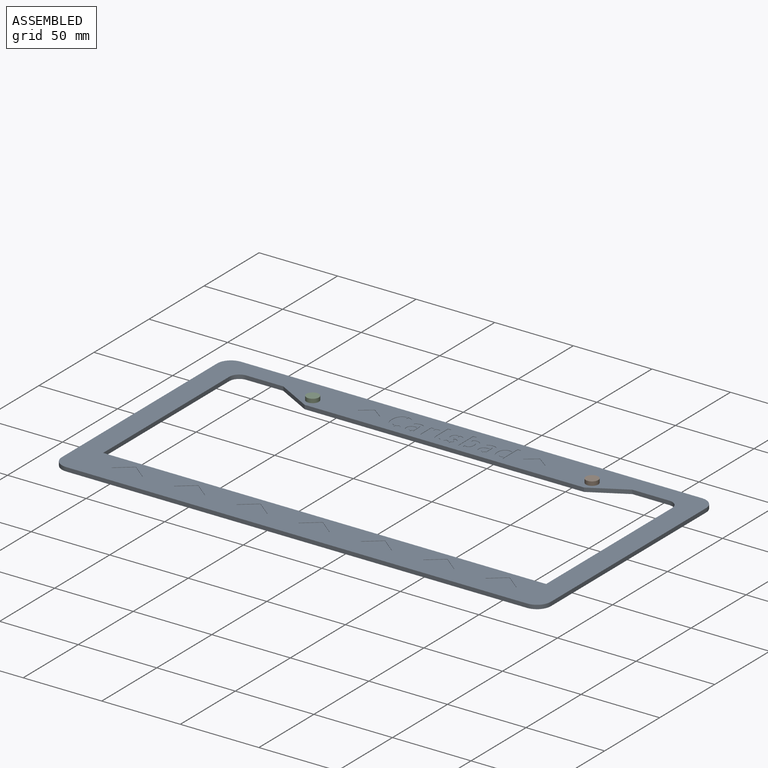
[diagram: assembled view]
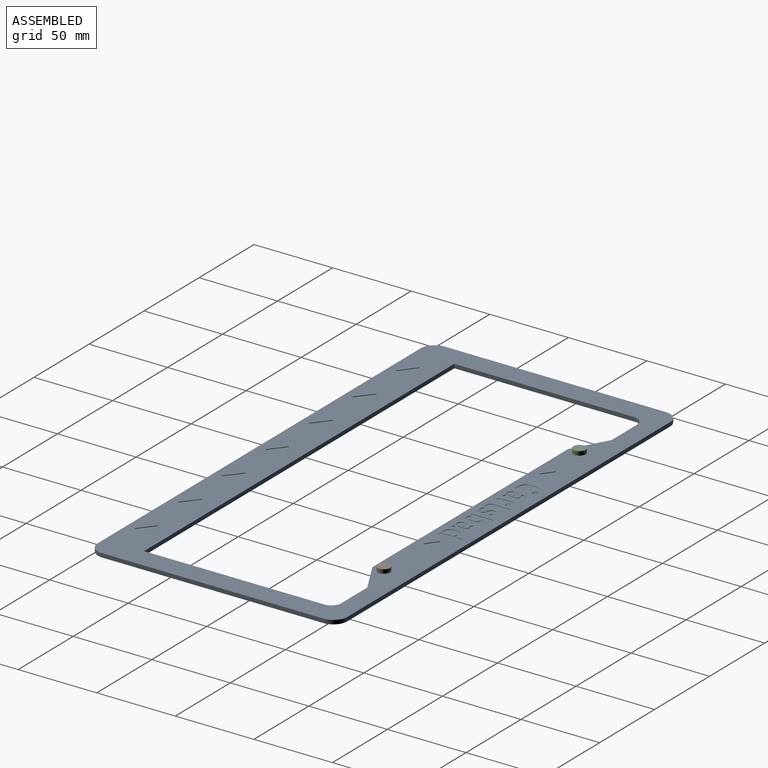
[diagram: assembled view, second angle]
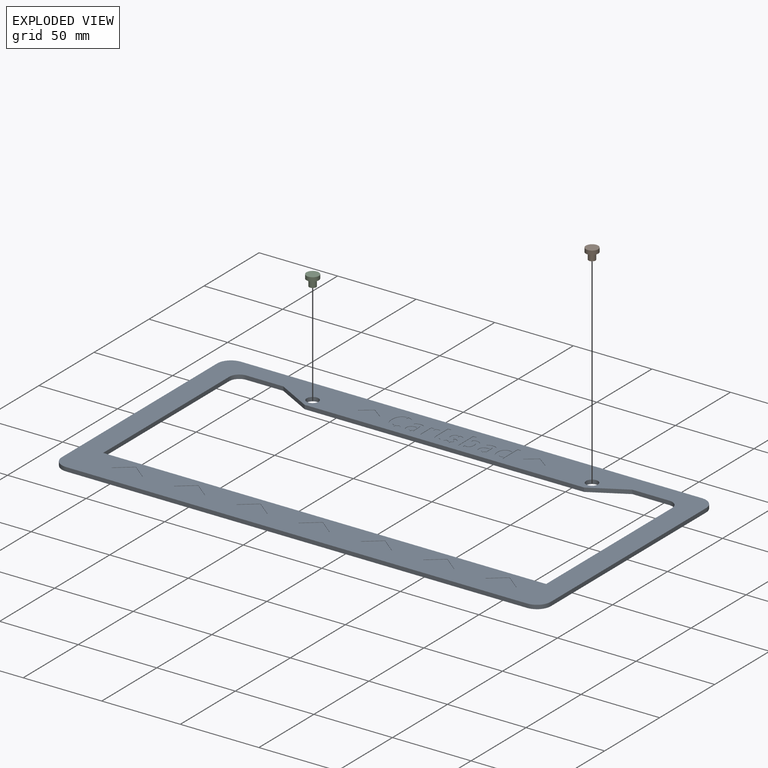
[diagram: exploded view]
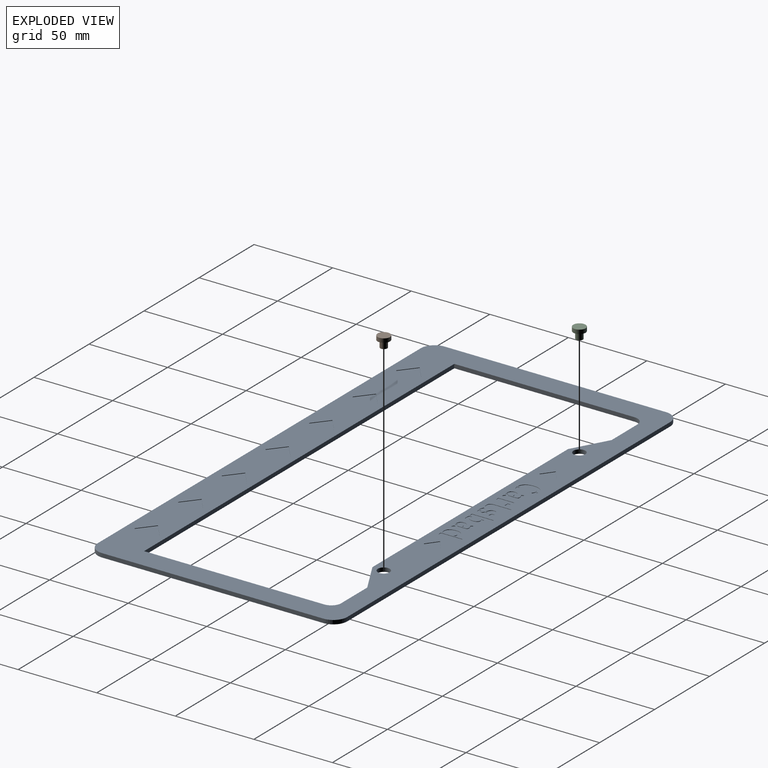
[diagram: exploded view, second angle]
ASSEMBLY  parts=3 mates=2
PART A: 357 faces, bbox 311.2x158.8x2.5 mm
  f0: plane 311.15x158.75mm, normal (0,0,1), area 15968.4mm2, adj f1,f2,f3,f4,f5,f6,f7,f8
  f1: plane 140.97x2.54mm, normal (-1,0,0), area 358.1mm2, adj f0,f2,f20,f21
  f2: cylinder r=8.89mm len=8.89mm, axis (0,0,-1), area 35.5mm2, adj f0,f1,f3,f21
  f3: plane 293.37x2.54mm, normal (0,-1,0), area 745.2mm2, adj f0,f2,f4,f21
  f4: cylinder r=8.89mm len=8.89mm, axis (0,0,-1), area 35.5mm2, adj f0,f3,f5,f21
  f5: plane 140.97x2.54mm, normal (1,0,0), area 358.1mm2, adj f0,f4,f6,f21
  f6: cylinder r=8.89mm len=8.89mm, axis (0,0,-1), area 35.5mm2, adj f0,f5,f7,f21
  f7: plane 293.37x2.54mm, normal (0,1,0), area 745.2mm2, adj f0,f6,f20,f21
  f8: cylinder r=6.35mm len=6.35mm, axis (0,0,-1), area 25.3mm2, adj f0,f9,f17,f21
  f9: plane 114.7x2.54mm, normal (-1,0,0), area 291.3mm2, adj f0,f8,f10,f21
  f10: plane 281.94x2.54mm, normal (0,1,0), area 716.1mm2, adj f0,f9,f11,f21
  f11: plane 114.7x2.54mm, normal (1,0,0), area 291.3mm2, adj f0,f10,f12,f21
  f12: cylinder r=6.35mm len=6.35mm, axis (0,0,-1), area 25.3mm2, adj f0,f11,f13,f21
  f13: plane 23.58x2.54mm, normal (0,-1,0), area 59.9mm2, adj f0,f12,f14,f21
  f14: plane 22.14x12.21mm, normal (-0.48,-0.88,0), area 64.2mm2, adj f0,f13,f15,f21
  f15: plane 177.8x2.54mm, normal (0,-1,0), area 451.6mm2, adj f0,f14,f16,f21
  f16: plane 22.14x12.21mm, normal (0.48,-0.88,0), area 64.2mm2, adj f0,f15,f17,f21
  f17: plane 23.58x2.54mm, normal (0,-1,0), area 59.9mm2, adj f0,f8,f16,f21
  f18: cylinder r=3.81mm len=7.62mm, axis (0,0,-1), area 60.8mm2, adj f0,f21
  f19: cylinder r=3.81mm len=7.62mm, axis (0,0,-1), area 60.8mm2, adj f0,f21
  f20: cylinder r=8.89mm len=8.89mm, axis (0,0,-1), area 35.5mm2, adj f0,f1,f7,f21
  f21: plane 311.15x158.75mm, normal (0,0,-1), area 17565.6mm2, adj f1,f2,f3,f4,f5,f6,f7,f8
  f22: extruded ~0.87x0.69mm, area 0.3mm2, adj f0,f23,f26,f27
  f23: plane 1.48x1.32mm, normal (-0.66,0.75,0), area 0.5mm2, adj f0,f22,f24,f27
  f24: extruded ~3.35x1.41mm, area 0.9mm2, adj f0,f23,f25,f27
  f25: plane 1.77x0.25mm, normal (1,0,0), area 0.4mm2, adj f0,f24,f26,f27
  f26: extruded ~1x0.27mm, area 0.3mm2, adj f0,f22,f25,f27
  f27: plane 3.35x2.73mm, normal (0,0,1), area 5.4mm2, adj f22,f23,f24,f25,f26
  f28: extruded ~2.33x0.38mm, area 0.6mm2, adj f0,f29,f52,f53
  f29: extruded ~2.26x0.32mm, area 0.6mm2, adj f0,f28,f30,f53
  f30: extruded ~1.9x1mm, area 0.5mm2, adj f0,f29,f31,f53
  f31: extruded ~1.22x0.85mm, area 0.4mm2, adj f0,f30,f32,f53
  f32: extruded ~1.4x0.26mm, area 0.4mm2, adj f0,f31,f33,f53
  f33: extruded ~1.19x0.25mm, area 0.3mm2, adj f0,f32,f34,f53
  f34: extruded ~0.99x0.38mm, area 0.3mm2, adj f0,f33,f35,f53
  f35: plane 1.85x0.25mm, normal (-1,0,0), area 0.5mm2, adj f0,f34,f36,f53
  f36: extruded ~1.48x0.69mm, area 0.4mm2, adj f0,f35,f37,f53
  f37: extruded ~0.96x0.27mm, area 0.3mm2, adj f0,f36,f38,f53
  f38: extruded ~0.74x0.73mm, area 0.3mm2, adj f0,f37,f39,f53
  f39: extruded ~1.08x0.48mm, area 0.3mm2, adj f0,f38,f40,f53
  f40: extruded ~1.33x0.25mm, area 0.3mm2, adj f0,f39,f41,f53
  f41: extruded ~1.34x0.25mm, area 0.3mm2, adj f0,f40,f42,f53
  f42: extruded ~1.11x0.45mm, area 0.3mm2, adj f0,f41,f43,f53
  f43: extruded ~0.76x0.72mm, area 0.3mm2, adj f0,f42,f44,f53
  f44: extruded ~0.98x0.28mm, area 0.3mm2, adj f0,f43,f45,f53
  f45: extruded ~0.84x0.25mm, area 0.2mm2, adj f0,f44,f46,f53
  f46: extruded ~0.68x0.52mm, area 0.2mm2, adj f0,f45,f47,f53
  f47: plane 1.89x0.25mm, normal (-1,0,0), area 0.5mm2, adj f0,f46,f48,f53
  f48: extruded ~0.89x0.36mm, area 0.2mm2, adj f0,f47,f49,f53
  f49: extruded ~1.05x0.25mm, area 0.3mm2, adj f0,f48,f50,f53
  f50: extruded ~1.45x0.26mm, area 0.4mm2, adj f0,f49,f51,f53
  f51: extruded ~1.35x0.85mm, area 0.4mm2, adj f0,f50,f52,f53
  f52: extruded ~1.53x0.99mm, area 0.5mm2, adj f0,f28,f51,f53
  f53: plane 10.23x6.11mm, normal (0,0,1), area 31.5mm2, adj f28,f29,f30,f31,f32,f33,f34,f35
  f54: extruded ~1.01x0.28mm, area 0.3mm2, adj f0,f55,f59,f60
  f55: plane 1.77x0.25mm, normal (1,0,0), area 0.4mm2, adj f0,f54,f56,f60
  f56: extruded ~1.84x0.41mm, area 0.5mm2, adj f0,f55,f57,f60
  f57: extruded ~1.52x1.02mm, area 0.5mm2, adj f0,f56,f58,f60
  f58: plane 1.48x1.3mm, normal (-0.66,-0.75,0), area 0.5mm2, adj f0,f57,f59,f60
  f59: extruded ~0.86x0.68mm, area 0.3mm2, adj f0,f54,f58,f60
  f60: plane 3.35x2.73mm, normal (0,0,1), area 5.4mm2, adj f54,f55,f56,f57,f58,f59
  f61: extruded ~2.8x0.38mm, area 0.7mm2, adj f0,f62,f78,f79
  f62: extruded ~2.81x0.38mm, area 0.7mm2, adj f0,f61,f63,f79
  f63: extruded ~2.06x1.06mm, area 0.6mm2, adj f0,f62,f64,f79
  f64: extruded ~1.59x1.3mm, area 0.5mm2, adj f0,f63,f65,f79
  f65: extruded ~2.01x0.53mm, area 0.5mm2, adj f0,f64,f66,f79
  f66: plane 1.75x0.25mm, normal (-1,0,0), area 0.4mm2, adj f0,f65,f67,f79
  f67: extruded ~1.1x0.39mm, area 0.3mm2, adj f0,f66,f68,f79
  f68: extruded ~0.93x0.92mm, area 0.3mm2, adj f0,f67,f69,f79
  f69: extruded ~1.5x0.61mm, area 0.4mm2, adj f0,f68,f70,f79
  f70: extruded ~2.14x0.25mm, area 0.5mm2, adj f0,f69,f71,f79
  f71: extruded ~2.13x0.25mm, area 0.5mm2, adj f0,f70,f72,f79
  f72: extruded ~1.49x0.61mm, area 0.4mm2, adj f0,f71,f73,f79
  f73: extruded ~0.91x0.9mm, area 0.3mm2, adj f0,f72,f74,f79
  f74: extruded ~1.11x0.4mm, area 0.3mm2, adj f0,f73,f75,f79
  f75: plane 1.78x0.25mm, normal (-1,0,0), area 0.5mm2, adj f0,f74,f76,f79
  f76: extruded ~2.01x0.55mm, area 0.5mm2, adj f0,f75,f77,f79
  f77: extruded ~1.59x1.3mm, area 0.5mm2, adj f0,f76,f78,f79
  f78: extruded ~2.05x1.06mm, area 0.6mm2, adj f0,f61,f77,f79
  f79: plane 13.41x5.05mm, normal (0,0,1), area 31.4mm2, adj f61,f62,f63,f64,f65,f66,f67,f68
  f80: extruded ~0.42x0.25mm, area 0.1mm2, adj f0,f81,f114,f115
  f81: plane 2.46x0.25mm, normal (-1,0,0), area 0.6mm2, adj f0,f80,f82,f115
  f82: extruded ~1.26x0.25mm, area 0.3mm2, adj f0,f81,f83,f115
  f83: extruded ~1.26x0.25mm, area 0.3mm2, adj f0,f82,f84,f115
  f84: extruded ~1.04x0.44mm, area 0.3mm2, adj f0,f83,f85,f115
  f85: extruded ~0.73x0.67mm, area 0.3mm2, adj f0,f84,f86,f115
  f86: extruded ~0.93x0.36mm, area 0.3mm2, adj f0,f85,f87,f115
  f87: extruded ~1.04x0.25mm, area 0.3mm2, adj f0,f86,f88,f115
  f88: extruded ~1.13x0.25mm, area 0.3mm2, adj f0,f87,f89,f115
  f89: extruded ~1.01x0.26mm, area 0.3mm2, adj f0,f88,f90,f115
  f90: extruded ~0.82x0.37mm, area 0.2mm2, adj f0,f89,f91,f115
  f91: extruded ~0.53x0.4mm, area 0.2mm2, adj f0,f90,f92,f115
  f92: plane 1.23x0.8mm, normal (0.84,0.55,0), area 0.4mm2, adj f0,f91,f93,f115
  f93: extruded ~0.33x0.25mm, area 0.1mm2, adj f0,f92,f94,f115
  f94: extruded ~0.52x0.3mm, area 0.2mm2, adj f0,f93,f95,f115
  f95: extruded ~0.64x0.25mm, area 0.2mm2, adj f0,f94,f96,f115
  f96: extruded ~0.74x0.25mm, area 0.2mm2, adj f0,f95,f97,f115
  f97: extruded ~0.74x0.25mm, area 0.2mm2, adj f0,f96,f98,f115
  f98: extruded ~0.53x0.3mm, area 0.2mm2, adj f0,f97,f99,f115
  f99: extruded ~0.76x0.3mm, area 0.2mm2, adj f0,f98,f100,f115
  f100: extruded ~1.39x0.25mm, area 0.4mm2, adj f0,f99,f101,f115
  f101: plane 3.76x0.25mm, normal (1,0,0), area 1mm2, adj f0,f100,f102,f115
  f102: extruded ~0.61x0.6mm, area 0.2mm2, adj f0,f101,f103,f115
  f103: extruded ~0.78x0.35mm, area 0.2mm2, adj f0,f102,f104,f115
  f104: plane 1.36x0.25mm, normal (1,0,0), area 0.3mm2, adj f0,f103,f105,f115
  f105: extruded ~1.17x0.51mm, area 0.3mm2, adj f0,f104,f106,f115
  f106: extruded ~0.79x0.71mm, area 0.3mm2, adj f0,f105,f107,f115
  f107: extruded ~0.53x0.26mm, area 0.1mm2, adj f0,f106,f108,f115
  f108: extruded ~0.44x0.41mm, area 0.2mm2, adj f0,f107,f109,f115
  f109: extruded ~0.5x0.3mm, area 0.1mm2, adj f0,f108,f110,f115
  f110: extruded ~0.49x0.25mm, area 0.1mm2, adj f0,f109,f111,f115
  f111: plane 1.2x0.57mm, normal (-0.9,0.43,0), area 0.3mm2, adj f0,f110,f112,f115
  f112: extruded ~0.31x0.3mm, area 0.1mm2, adj f0,f111,f113,f115
  f113: extruded ~0.52x0.25mm, area 0.1mm2, adj f0,f112,f114,f115
  f114: extruded ~0.56x0.25mm, area 0.1mm2, adj f0,f80,f113,f115
  f115: plane 10.14x7.42mm, normal (0,0,1), area 28.2mm2, adj f80,f81,f82,f83,f84,f85,f86,f87
  f116: extruded ~1.2x0.33mm, area 0.3mm2, adj f0,f117,f134,f135
  f117: extruded ~0.94x0.25mm, area 0.2mm2, adj f0,f116,f118,f135
  f118: extruded ~0.56x0.56mm, area 0.2mm2, adj f0,f117,f119,f135
  f119: extruded ~0.73x0.27mm, area 0.2mm2, adj f0,f118,f120,f135
  f120: extruded ~0.75x0.25mm, area 0.2mm2, adj f0,f119,f121,f135
  f121: plane 0.39x0.25mm, normal (0,1,0), area 0.1mm2, adj f0,f120,f122,f135
  f122: plane 1.27x0.25mm, normal (-1,0,0), area 0.3mm2, adj f0,f121,f123,f135
  f123: plane 0.78x0.25mm, normal (0,-1,0), area 0.2mm2, adj f0,f122,f124,f135
  f124: extruded ~1.41x0.25mm, area 0.4mm2, adj f0,f123,f125,f135
  f125: extruded ~1.24x0.57mm, area 0.3mm2, adj f0,f124,f126,f135
  f126: extruded ~0.98x0.89mm, area 0.3mm2, adj f0,f125,f127,f135
  f127: extruded ~1.42x0.35mm, area 0.4mm2, adj f0,f126,f128,f135
  f128: extruded ~1.44x0.25mm, area 0.4mm2, adj f0,f127,f129,f135
  f129: extruded ~0.95x0.67mm, area 0.3mm2, adj f0,f128,f130,f135
  f130: extruded ~0.99x0.52mm, area 0.3mm2, adj f0,f129,f131,f135
  f131: extruded ~1.17x0.25mm, area 0.3mm2, adj f0,f130,f132,f135
  f132: extruded ~0.25x0.23mm, area 0.1mm2, adj f0,f131,f133,f135
  f133: plane 1.44x0.25mm, normal (-1,0,0), area 0.4mm2, adj f0,f132,f134,f135
  f134: extruded ~0.95x0.46mm, area 0.3mm2, adj f0,f116,f133,f135
  f135: plane 6.22x4.67mm, normal (0,0,1), area 14.8mm2, adj f116,f117,f118,f119,f120,f121,f122,f123
  f136: plane 1.03x0.25mm, normal (-0.98,-0.22,0), area 0.3mm2, adj f0,f137,f140,f141
  f137: plane 1.93x0.25mm, normal (0,-1,0), area 0.5mm2, adj f0,f136,f138,f141
  f138: plane 10.05x0.25mm, normal (1,0,0), area 2.6mm2, adj f0,f137,f139,f141
  f139: plane 2.16x0.25mm, normal (0,1,0), area 0.5mm2, adj f0,f138,f140,f141
  f140: plane 9.02x0.25mm, normal (-1,0,0), area 2.3mm2, adj f0,f136,f139,f141
  f141: plane 10.05x2.16mm, normal (0,0,1), area 21.6mm2, adj f136,f137,f138,f139,f140
  f142: extruded ~1.07x0.38mm, area 0.3mm2, adj f0,f143,f148,f149
  f143: plane 1.82x0.25mm, normal (1,0,0), area 0.5mm2, adj f0,f142,f144,f149
  f144: extruded ~0.76x0.25mm, area 0.2mm2, adj f0,f143,f145,f149
  f145: extruded ~0.79x0.25mm, area 0.2mm2, adj f0,f144,f146,f149
  f146: extruded ~1.21x0.25mm, area 0.3mm2, adj f0,f145,f147,f149
  f147: plane 2.24x0.25mm, normal (-1,0,0), area 0.6mm2, adj f0,f146,f148,f149
  f148: extruded ~1.69x0.25mm, area 0.4mm2, adj f0,f142,f147,f149
  f149: plane 2.76x2.34mm, normal (0,0,1), area 5.6mm2, adj f142,f143,f144,f145,f146,f147,f148
  f150: extruded ~0.95x0.25mm, area 0.2mm2, adj f0,f151,f166,f167
  f151: plane 10.78x0.25mm, normal (-1,0,0), area 2.7mm2, adj f0,f150,f152,f167
  f152: plane 2.18x0.25mm, normal (0,-1,0), area 0.6mm2, adj f0,f151,f153,f167
  f153: plane 10.68x0.25mm, normal (1,0,0), area 2.7mm2, adj f0,f152,f154,f167
  f154: extruded ~0.75x0.25mm, area 0.2mm2, adj f0,f153,f155,f167
  f155: extruded ~0.99x0.25mm, area 0.3mm2, adj f0,f154,f156,f167
  f156: extruded ~0.92x0.52mm, area 0.3mm2, adj f0,f155,f157,f167
  f157: extruded ~0.94x0.53mm, area 0.3mm2, adj f0,f156,f158,f167
  f158: extruded ~0.48x0.25mm, area 0.1mm2, adj f0,f157,f159,f167
  f159: extruded ~0.54x0.25mm, area 0.1mm2, adj f0,f158,f160,f167
  f160: extruded ~0.53x0.25mm, area 0.1mm2, adj f0,f159,f161,f167
  f161: extruded ~0.47x0.25mm, area 0.1mm2, adj f0,f160,f162,f167
  f162: extruded ~0.48x0.25mm, area 0.1mm2, adj f0,f161,f163,f167
  f163: plane 1.32x0.25mm, normal (-1,0,0), area 0.3mm2, adj f0,f162,f164,f167
  f164: extruded ~0.79x0.25mm, area 0.2mm2, adj f0,f163,f165,f167
  f165: extruded ~0.65x0.25mm, area 0.2mm2, adj f0,f164,f166,f167
  f166: extruded ~0.52x0.45mm, area 0.2mm2, adj f0,f150,f165,f167
  f167: plane 13.94x4.22mm, normal (0,0,1), area 32.3mm2, adj f150,f151,f152,f153,f154,f155,f156,f157
  f168: extruded ~1.22x0.25mm, area 0.3mm2, adj f0,f169,f181,f182
  f169: extruded ~1.46x0.47mm, area 0.4mm2, adj f0,f168,f170,f182
  f170: extruded ~1.42x1.05mm, area 0.5mm2, adj f0,f169,f171,f182
  f171: extruded ~0.61x0.26mm, area 0.2mm2, adj f0,f170,f172,f182
  f172: extruded ~0.61x0.25mm, area 0.2mm2, adj f0,f171,f173,f182
  f173: plane 1.91x0.25mm, normal (-1,0,0), area 0.5mm2, adj f0,f172,f174,f182
  f174: extruded ~0.7x0.46mm, area 0.2mm2, adj f0,f173,f175,f182
  f175: extruded ~0.69x0.28mm, area 0.2mm2, adj f0,f174,f176,f182
  f176: extruded ~0.8x0.26mm, area 0.2mm2, adj f0,f175,f177,f182
  f177: extruded ~0.72x0.37mm, area 0.2mm2, adj f0,f176,f178,f182
  f178: plane 1.78x0.25mm, normal (-1,0,0), area 0.5mm2, adj f0,f177,f179,f182
  f179: extruded ~1.17x0.28mm, area 0.3mm2, adj f0,f178,f180,f182
  f180: extruded ~1.01x0.61mm, area 0.3mm2, adj f0,f179,f181,f182
  f181: extruded ~0.93x0.7mm, area 0.3mm2, adj f0,f168,f180,f182
  f182: plane 6.01x3.12mm, normal (0,0,1), area 12.5mm2, adj f168,f169,f170,f171,f172,f173,f174,f175
  f183: plane 2.16x0.25mm, normal (0,-1,0), area 0.5mm2, adj f0,f184,f188,f189
  f184: plane 13.85x0.25mm, normal (1,0,0), area 3.5mm2, adj f0,f183,f185,f189
  f185: plane 2.05x0.25mm, normal (0,1,0), area 0.5mm2, adj f0,f184,f186,f189
  f186: extruded ~0.62x0.25mm, area 0.2mm2, adj f0,f185,f187,f189
  f187: extruded ~0.57x0.25mm, area 0.1mm2, adj f0,f186,f188,f189
  f188: plane 12.66x0.25mm, normal (-1,0,0), area 3.2mm2, adj f0,f183,f187,f189
  f189: plane 13.85x2.16mm, normal (0,0,1), area 29.8mm2, adj f183,f184,f185,f186,f187,f188
  f190: extruded ~1.09x0.39mm, area 0.3mm2, adj f0,f191,f203,f204
  f191: plane 1.89x0.25mm, normal (1,0,0), area 0.5mm2, adj f0,f190,f192,f204
  f192: extruded ~0.9x0.45mm, area 0.3mm2, adj f0,f191,f193,f204
  f193: extruded ~0.72x0.37mm, area 0.2mm2, adj f0,f192,f194,f204
  f194: extruded ~0.74x0.33mm, area 0.2mm2, adj f0,f193,f195,f204
  f195: extruded ~0.94x0.38mm, area 0.3mm2, adj f0,f194,f196,f204
  f196: plane 1.69x0.25mm, normal (1,0,0), area 0.4mm2, adj f0,f195,f197,f204
  f197: extruded ~1.23x0.29mm, area 0.3mm2, adj f0,f196,f198,f204
  f198: extruded ~0.99x0.59mm, area 0.3mm2, adj f0,f197,f199,f204
  f199: extruded ~0.89x0.67mm, area 0.3mm2, adj f0,f198,f200,f204
  f200: extruded ~1.21x0.25mm, area 0.3mm2, adj f0,f199,f201,f204
  f201: extruded ~1.19x0.29mm, area 0.3mm2, adj f0,f200,f202,f204
  f202: extruded ~0.79x0.75mm, area 0.3mm2, adj f0,f201,f203,f204
  f203: extruded ~1.01x0.53mm, area 0.3mm2, adj f0,f190,f202,f204
  f204: plane 5.88x3.14mm, normal (0,0,1), area 11.8mm2, adj f190,f191,f192,f193,f194,f195,f196,f197
  f205: extruded ~0.85x0.47mm, area 0.2mm2, adj f0,f206,f213,f214
  f206: plane 1.45x0.91mm, normal (0.85,-0.53,0), area 0.4mm2, adj f0,f205,f207,f214
  f207: extruded ~0.78x0.46mm, area 0.2mm2, adj f0,f206,f208,f214
  f208: extruded ~0.74x0.28mm, area 0.2mm2, adj f0,f207,f209,f214
  f209: extruded ~0.74x0.25mm, area 0.2mm2, adj f0,f208,f210,f214
  f210: extruded ~0.82x0.25mm, area 0.2mm2, adj f0,f209,f211,f214
  f211: plane 1.66x0.25mm, normal (-1,0,0), area 0.4mm2, adj f0,f210,f212,f214
  f212: plane 0.25x0.09mm, normal (0,-1,0), area 0mm2, adj f0,f211,f213,f214
  f213: extruded ~1.24x0.25mm, area 0.3mm2, adj f0,f205,f212,f214
  f214: plane 3.08x2.34mm, normal (0,0,1), area 4.7mm2, adj f205,f206,f207,f208,f209,f210,f211,f212
  f215: extruded ~1.03x0.38mm, area 0.3mm2, adj f0,f216,f220,f221
  f216: plane 1.48x0.7mm, normal (-0.9,0.43,0), area 0.4mm2, adj f0,f215,f217,f221
  f217: extruded ~1.32x0.6mm, area 0.4mm2, adj f0,f216,f218,f221
  f218: extruded ~1.48x0.25mm, area 0.4mm2, adj f0,f217,f219,f221
  f219: plane 1.77x0.25mm, normal (1,0,0), area 0.4mm2, adj f0,f218,f220,f221
  f220: extruded ~1.08x0.25mm, area 0.3mm2, adj f0,f215,f219,f221
  f221: plane 2.8x2.3mm, normal (0,0,1), area 4.4mm2, adj f215,f216,f217,f218,f219,f220
  f222: plane 13.85x0.25mm, normal (-1,0,0), area 3.5mm2, adj f0,f223,f226,f227
  f223: plane 2.17x0.25mm, normal (0,-1,0), area 0.6mm2, adj f0,f222,f224,f227
  f224: plane 12.66x0.25mm, normal (1,0,0), area 3.2mm2, adj f0,f223,f225,f227
  f225: plane 1.2x0.25mm, normal (0.99,0.1,0), area 0.3mm2, adj f0,f224,f226,f227
  f226: plane 2.05x0.25mm, normal (0,1,0), area 0.5mm2, adj f0,f222,f225,f227
  f227: plane 13.85x2.17mm, normal (0,0,1), area 30mm2, adj f222,f223,f224,f225,f226
  f228: extruded ~0.42x0.25mm, area 0.1mm2, adj f0,f229,f262,f263
  f229: plane 2.46x0.25mm, normal (-1,0,0), area 0.6mm2, adj f0,f228,f230,f263
  f230: extruded ~1.26x0.25mm, area 0.3mm2, adj f0,f229,f231,f263
  f231: extruded ~1.26x0.25mm, area 0.3mm2, adj f0,f230,f232,f263
  f232: extruded ~1.04x0.44mm, area 0.3mm2, adj f0,f231,f233,f263
  f233: extruded ~0.73x0.67mm, area 0.3mm2, adj f0,f232,f234,f263
  f234: extruded ~0.93x0.36mm, area 0.3mm2, adj f0,f233,f235,f263
  f235: extruded ~1.04x0.25mm, area 0.3mm2, adj f0,f234,f236,f263
  f236: extruded ~1.13x0.25mm, area 0.3mm2, adj f0,f235,f237,f263
  f237: extruded ~1.01x0.26mm, area 0.3mm2, adj f0,f236,f238,f263
  f238: extruded ~0.82x0.37mm, area 0.2mm2, adj f0,f237,f239,f263
  f239: extruded ~0.53x0.4mm, area 0.2mm2, adj f0,f238,f240,f263
  f240: plane 1.23x0.8mm, normal (0.84,0.55,0), area 0.4mm2, adj f0,f239,f241,f263
  f241: extruded ~0.33x0.25mm, area 0.1mm2, adj f0,f240,f242,f263
  f242: extruded ~0.52x0.3mm, area 0.2mm2, adj f0,f241,f243,f263
  f243: extruded ~0.64x0.25mm, area 0.2mm2, adj f0,f242,f244,f263
  f244: extruded ~0.74x0.25mm, area 0.2mm2, adj f0,f243,f245,f263
  f245: extruded ~0.74x0.25mm, area 0.2mm2, adj f0,f244,f246,f263
  f246: extruded ~0.53x0.3mm, area 0.2mm2, adj f0,f245,f247,f263
  f247: extruded ~0.76x0.3mm, area 0.2mm2, adj f0,f246,f248,f263
  f248: extruded ~1.39x0.25mm, area 0.4mm2, adj f0,f247,f249,f263
  f249: plane 3.76x0.25mm, normal (1,0,0), area 1mm2, adj f0,f248,f250,f263
  f250: extruded ~0.61x0.6mm, area 0.2mm2, adj f0,f249,f251,f263
  f251: extruded ~0.78x0.35mm, area 0.2mm2, adj f0,f250,f252,f263
  f252: plane 1.36x0.25mm, normal (1,0,0), area 0.3mm2, adj f0,f251,f253,f263
  f253: extruded ~1.17x0.51mm, area 0.3mm2, adj f0,f252,f254,f263
  f254: extruded ~0.79x0.71mm, area 0.3mm2, adj f0,f253,f255,f263
  f255: extruded ~0.53x0.26mm, area 0.1mm2, adj f0,f254,f256,f263
  f256: extruded ~0.44x0.41mm, area 0.2mm2, adj f0,f255,f257,f263
  f257: extruded ~0.5x0.3mm, area 0.1mm2, adj f0,f256,f258,f263
  f258: extruded ~0.49x0.25mm, area 0.1mm2, adj f0,f257,f259,f263
  f259: plane 1.2x0.57mm, normal (-0.9,0.43,0), area 0.3mm2, adj f0,f258,f260,f263
  f260: extruded ~0.31x0.3mm, area 0.1mm2, adj f0,f259,f261,f263
  f261: extruded ~0.52x0.25mm, area 0.1mm2, adj f0,f260,f262,f263
  f262: extruded ~0.56x0.25mm, area 0.1mm2, adj f0,f228,f261,f263
  f263: plane 10.14x7.42mm, normal (0,0,1), area 28.2mm2, adj f228,f229,f230,f231,f232,f233,f234,f235
  f264: extruded ~1.2x0.33mm, area 0.3mm2, adj f0,f265,f282,f283
  f265: extruded ~0.94x0.25mm, area 0.2mm2, adj f0,f264,f266,f283
  f266: extruded ~0.56x0.56mm, area 0.2mm2, adj f0,f265,f267,f283
  f267: extruded ~0.73x0.27mm, area 0.2mm2, adj f0,f266,f268,f283
  f268: extruded ~0.75x0.25mm, area 0.2mm2, adj f0,f267,f269,f283
  f269: plane 0.39x0.25mm, normal (0,1,0), area 0.1mm2, adj f0,f268,f270,f283
  f270: plane 1.27x0.25mm, normal (-1,0,0), area 0.3mm2, adj f0,f269,f271,f283
  f271: plane 0.78x0.25mm, normal (0,-1,0), area 0.2mm2, adj f0,f270,f272,f283
  f272: extruded ~1.41x0.25mm, area 0.4mm2, adj f0,f271,f273,f283
  f273: extruded ~1.24x0.57mm, area 0.3mm2, adj f0,f272,f274,f283
  f274: extruded ~0.98x0.89mm, area 0.3mm2, adj f0,f273,f275,f283
  f275: extruded ~1.42x0.35mm, area 0.4mm2, adj f0,f274,f276,f283
  f276: extruded ~1.44x0.25mm, area 0.4mm2, adj f0,f275,f277,f283
  f277: extruded ~0.95x0.67mm, area 0.3mm2, adj f0,f276,f278,f283
  f278: extruded ~0.99x0.52mm, area 0.3mm2, adj f0,f277,f279,f283
  f279: extruded ~1.17x0.25mm, area 0.3mm2, adj f0,f278,f280,f283
  f280: extruded ~0.25x0.23mm, area 0.1mm2, adj f0,f279,f281,f283
  f281: plane 1.44x0.25mm, normal (-1,0,0), area 0.4mm2, adj f0,f280,f282,f283
  f282: extruded ~0.95x0.46mm, area 0.3mm2, adj f0,f264,f281,f283
  f283: plane 6.22x4.67mm, normal (0,0,1), area 14.8mm2, adj f264,f265,f266,f267,f268,f269,f270,f271
  f284: extruded ~1.8x0.25mm, area 0.5mm2, adj f0,f285,f310,f311
  f285: extruded ~1.46x0.67mm, area 0.4mm2, adj f0,f284,f286,f311
  f286: extruded ~0.98x0.96mm, area 0.4mm2, adj f0,f285,f287,f311
  f287: extruded ~1.13x0.53mm, area 0.3mm2, adj f0,f286,f288,f311
  f288: extruded ~1.2x0.25mm, area 0.3mm2, adj f0,f287,f289,f311
  f289: extruded ~1.03x0.25mm, area 0.3mm2, adj f0,f288,f290,f311
  f290: extruded ~0.91x0.36mm, area 0.2mm2, adj f0,f289,f291,f311
  f291: plane 1.91x0.25mm, normal (1,0,0), area 0.5mm2, adj f0,f290,f292,f311
  f292: extruded ~0.69x0.54mm, area 0.2mm2, adj f0,f291,f293,f311
  f293: extruded ~0.85x0.25mm, area 0.2mm2, adj f0,f292,f294,f311
  f294: extruded ~0.96x0.29mm, area 0.3mm2, adj f0,f293,f295,f311
  f295: extruded ~0.77x0.72mm, area 0.3mm2, adj f0,f294,f296,f311
  f296: extruded ~1.11x0.46mm, area 0.3mm2, adj f0,f295,f297,f311
  f297: extruded ~1.32x0.25mm, area 0.3mm2, adj f0,f296,f298,f311
  f298: extruded ~1.34x0.25mm, area 0.3mm2, adj f0,f297,f299,f311
  f299: extruded ~1.08x0.5mm, area 0.3mm2, adj f0,f298,f300,f311
  f300: extruded ~0.75x0.72mm, area 0.3mm2, adj f0,f299,f301,f311
  f301: extruded ~0.97x0.27mm, area 0.3mm2, adj f0,f300,f302,f311
  f302: extruded ~0.81x0.25mm, area 0.2mm2, adj f0,f301,f303,f311
  f303: extruded ~0.63x0.5mm, area 0.2mm2, adj f0,f302,f304,f311
  f304: plane 1.85x0.25mm, normal (1,0,0), area 0.5mm2, adj f0,f303,f305,f311
  f305: extruded ~0.98x0.39mm, area 0.3mm2, adj f0,f304,f306,f311
  f306: extruded ~1.2x0.25mm, area 0.3mm2, adj f0,f305,f307,f311
  f307: extruded ~1.74x0.44mm, area 0.5mm2, adj f0,f306,f308,f311
  f308: extruded ~1.23x1.18mm, area 0.4mm2, adj f0,f307,f309,f311
  f309: extruded ~1.7x0.73mm, area 0.5mm2, adj f0,f308,f310,f311
  f310: extruded ~1.98x0.25mm, area 0.5mm2, adj f0,f284,f309,f311
  f311: plane 10.23x6.12mm, normal (0,0,1), area 31.5mm2, adj f284,f285,f286,f287,f288,f289,f290,f291
  f312: plane 7.13x5.31mm, normal (0.6,-0.8,0), area 2.3mm2, adj f0,f313,f315,f316
  f313: plane 7.13x5.31mm, normal (0.6,0.8,0), area 2.3mm2, adj f0,f312,f314,f316
  f314: plane 7.13x5.31mm, normal (-0.6,0.8,0), area 2.3mm2, adj f0,f313,f315,f316
  f315: plane 7.13x5.31mm, normal (-0.6,-0.8,0), area 2.3mm2, adj f0,f312,f314,f316
  f316: plane 14.26x10.62mm, normal (0,0,1), area 75.7mm2, adj f312,f313,f314,f315
  f317: plane 7.13x5.31mm, normal (0.6,-0.8,0), area 2.3mm2, adj f0,f318,f320,f321
  f318: plane 7.13x5.31mm, normal (0.6,0.8,0), area 2.3mm2, adj f0,f317,f319,f321
  f319: plane 7.13x5.31mm, normal (-0.6,0.8,0), area 2.3mm2, adj f0,f318,f320,f321
  f320: plane 7.13x5.31mm, normal (-0.6,-0.8,0), area 2.3mm2, adj f0,f317,f319,f321
  f321: plane 14.26x10.62mm, normal (0,0,1), area 75.7mm2, adj f317,f318,f319,f320
  f322: plane 9.91x7.94mm, normal (0.62,-0.78,0), area 3.2mm2, adj f0,f323,f325,f326
  f323: plane 9.91x7.94mm, normal (0.62,0.78,0), area 3.2mm2, adj f0,f322,f324,f326
  f324: plane 9.91x7.94mm, normal (-0.62,0.78,0), area 3.2mm2, adj f0,f323,f325,f326
  f325: plane 9.91x7.94mm, normal (-0.62,-0.78,0), area 3.2mm2, adj f0,f322,f324,f326
  f326: plane 19.83x15.88mm, normal (0,0,1), area 157.4mm2, adj f322,f323,f324,f325
  f327: plane 9.91x7.94mm, normal (0.62,-0.78,0), area 3.2mm2, adj f0,f328,f330,f331
  f328: plane 9.91x7.94mm, normal (0.62,0.78,0), area 3.2mm2, adj f0,f327,f329,f331
  f329: plane 9.91x7.94mm, normal (-0.62,0.78,0), area 3.2mm2, adj f0,f328,f330,f331
  f330: plane 9.91x7.94mm, normal (-0.62,-0.78,0), area 3.2mm2, adj f0,f327,f329,f331
  f331: plane 19.83x15.88mm, normal (0,0,1), area 157.4mm2, adj f327,f328,f329,f330
  f332: plane 9.91x7.94mm, normal (0.62,-0.78,0), area 3.2mm2, adj f0,f333,f335,f336
  f333: plane 9.91x7.94mm, normal (0.62,0.78,0), area 3.2mm2, adj f0,f332,f334,f336
  f334: plane 9.91x7.94mm, normal (-0.62,0.78,0), area 3.2mm2, adj f0,f333,f335,f336
  f335: plane 9.91x7.94mm, normal (-0.62,-0.78,0), area 3.2mm2, adj f0,f332,f334,f336
  f336: plane 19.83x15.88mm, normal (0,0,1), area 157.4mm2, adj f332,f333,f334,f335
  f337: plane 9.91x7.94mm, normal (0.62,-0.78,0), area 3.2mm2, adj f0,f338,f340,f341
  f338: plane 9.91x7.94mm, normal (0.62,0.78,0), area 3.2mm2, adj f0,f337,f339,f341
  f339: plane 9.91x7.94mm, normal (-0.62,0.78,0), area 3.2mm2, adj f0,f338,f340,f341
  f340: plane 9.91x7.94mm, normal (-0.62,-0.78,0), area 3.2mm2, adj f0,f337,f339,f341
  f341: plane 19.83x15.88mm, normal (0,0,1), area 157.4mm2, adj f337,f338,f339,f340
  f342: plane 9.91x7.94mm, normal (0.62,-0.78,0), area 3.2mm2, adj f0,f343,f345,f346
  f343: plane 9.91x7.94mm, normal (0.62,0.78,0), area 3.2mm2, adj f0,f342,f344,f346
  f344: plane 9.91x7.94mm, normal (-0.62,0.78,0), area 3.2mm2, adj f0,f343,f345,f346
  f345: plane 9.91x7.94mm, normal (-0.62,-0.78,0), area 3.2mm2, adj f0,f342,f344,f346
  f346: plane 19.83x15.88mm, normal (0,0,1), area 157.4mm2, adj f342,f343,f344,f345
  f347: plane 9.91x7.94mm, normal (0.62,-0.78,0), area 3.2mm2, adj f0,f348,f350,f351
  f348: plane 9.91x7.94mm, normal (0.62,0.78,0), area 3.2mm2, adj f0,f347,f349,f351
  f349: plane 9.91x7.94mm, normal (-0.62,0.78,0), area 3.2mm2, adj f0,f348,f350,f351
  f350: plane 9.91x7.94mm, normal (-0.62,-0.78,0), area 3.2mm2, adj f0,f347,f349,f351
  f351: plane 19.83x15.88mm, normal (0,0,1), area 157.4mm2, adj f347,f348,f349,f350
  f352: plane 9.91x7.94mm, normal (0.62,-0.78,0), area 3.2mm2, adj f0,f353,f355,f356
  f353: plane 9.91x7.94mm, normal (0.62,0.78,0), area 3.2mm2, adj f0,f352,f354,f356
  f354: plane 9.91x7.94mm, normal (-0.62,0.78,0), area 3.2mm2, adj f0,f353,f355,f356
  f355: plane 9.91x7.94mm, normal (-0.62,-0.78,0), area 3.2mm2, adj f0,f352,f354,f356
  f356: plane 19.83x15.88mm, normal (0,0,1), area 157.4mm2, adj f352,f353,f354,f355
PART B: 5 faces, bbox 7.9x7.9x7 mm
  f0: cylinder r=3.94mm len=7.87mm, axis (0,0,-1), area 62.8mm2, adj f1,f2
  f1: plane 7.87x7.87mm, normal (0,0,1), area 48.7mm2, adj f0
  f2: plane 7.87x7.87mm, normal (0,0,-1), area 33.2mm2, adj f0,f3
  f3: cylinder r=2.22mm len=4.45mm, axis (0,0,1), area 62.1mm2, adj f2,f4
  f4: plane 4.45x4.45mm, normal (0,0,-1), area 15.5mm2, adj f3
PART C: same geometry as B
PLACE A t=(-0.59,7.39,-0.61)mm fixed
PLACE B t=(177.21,7.39,-0.61)mm
PLACE C t=(-0.59,7.39,-0.61)mm
MATE fastened C.f0 <-> A.f18  axis (0,0,-1) through (-89.49,69.5,1.93)mm
MATE fastened B.f0 <-> A.f19  axis (0,0,1) through (88.31,69.5,1.93)mm
